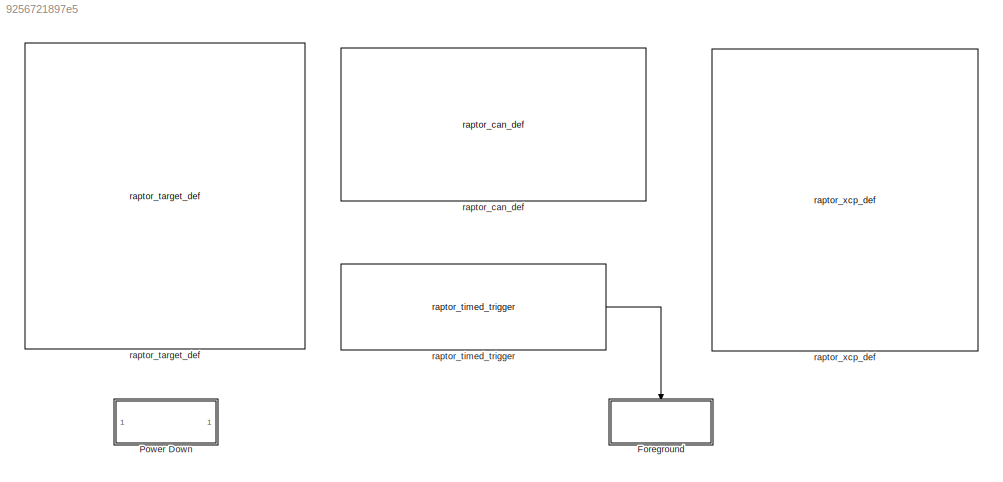
MODEL slx_9256721897e5
KIND model
CONFIG AbsTol = auto
CONFIG FixedStep = 0.005
CONFIG MaxStep = auto
CONFIG MinStep = auto
CONFIG PreLoadFcn = try, model_open; catch, disp('Error occurred while executing model pre-load callback: model_open.m'); disp('Please assure that the MATLAB working directory is set to the model directory before opening.'); end
CONFIG RelTol = 1e-3
CONFIG SampleTimeConstraint = Unconstrained
CONFIG Solver = FixedStepDiscrete
CONFIG SolverMode = Auto
CONFIG SolverName = FixedStepDiscrete
CONFIG StartTime = 0.0
CONFIG StopTime = 10.0
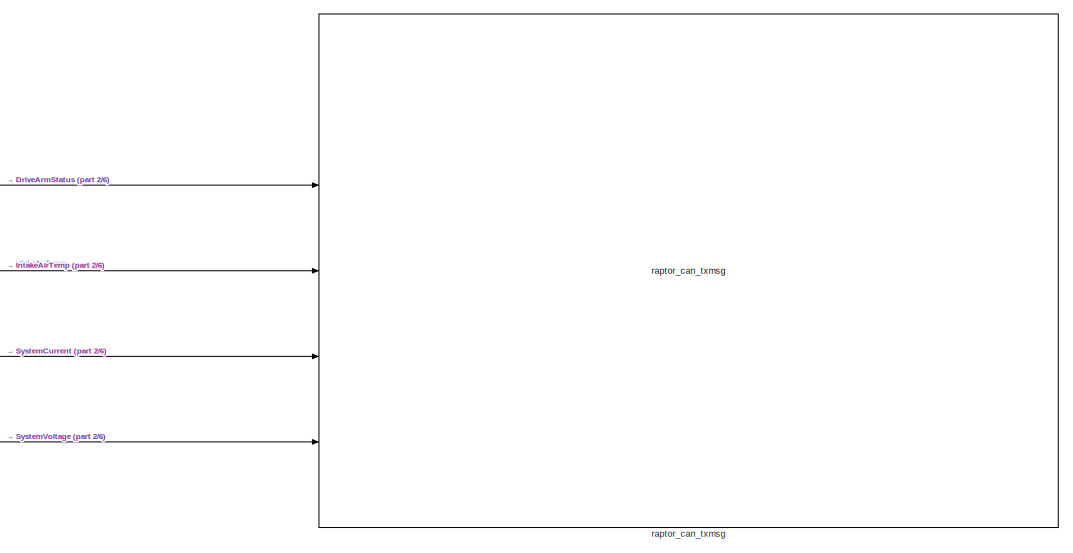
[diagram: Foreground - part 1/6, top right region]
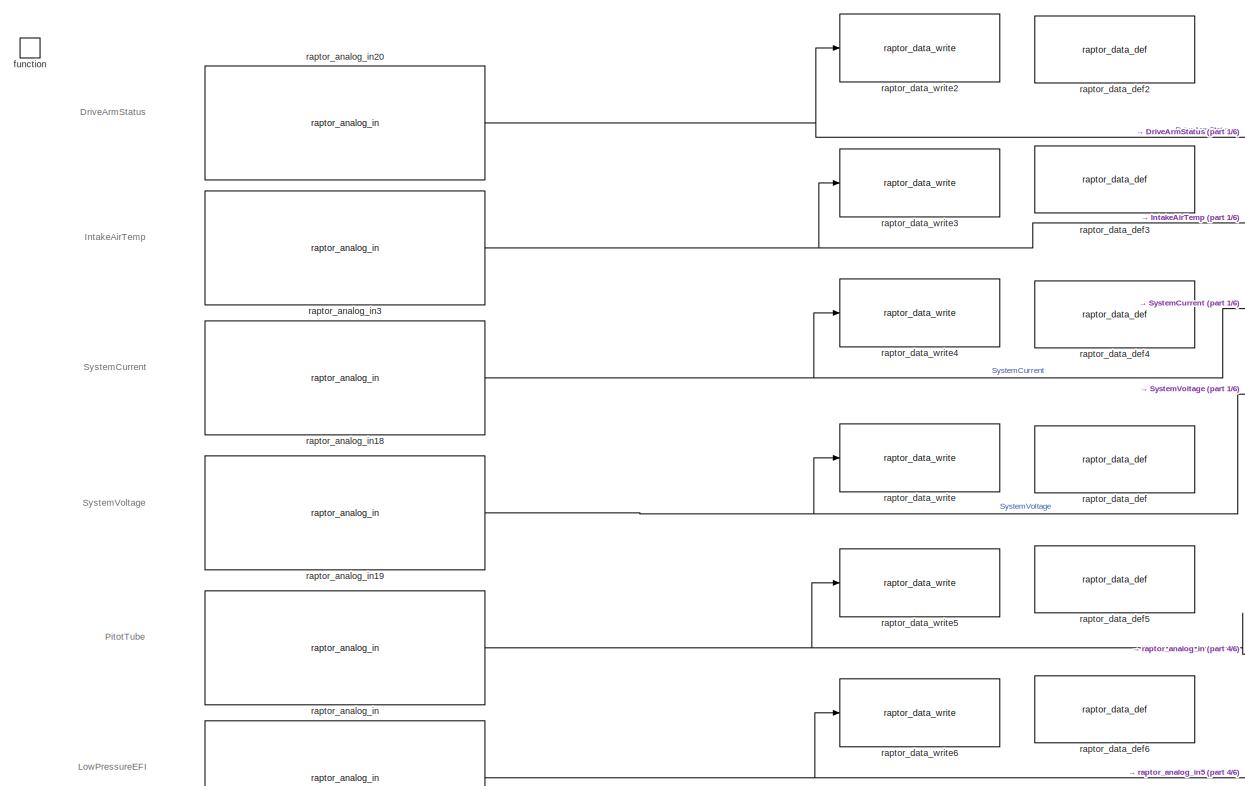
[diagram: Foreground - part 2/6, top left region]
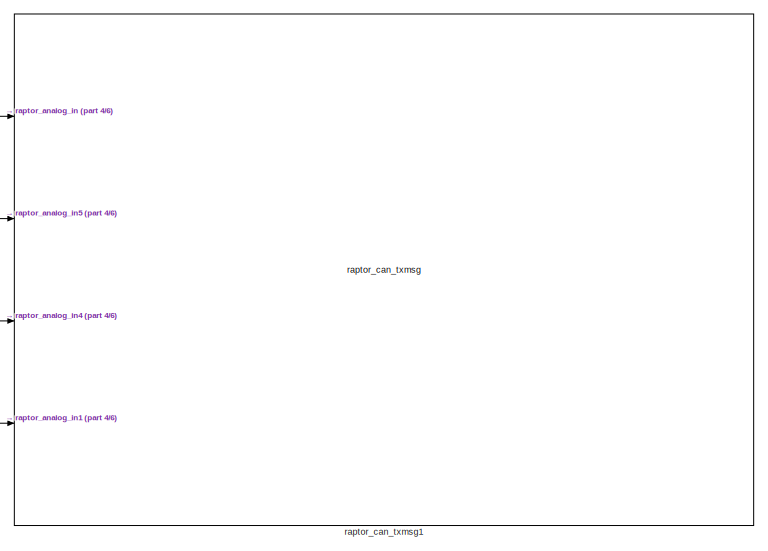
[diagram: Foreground - part 3/6, middle right region]
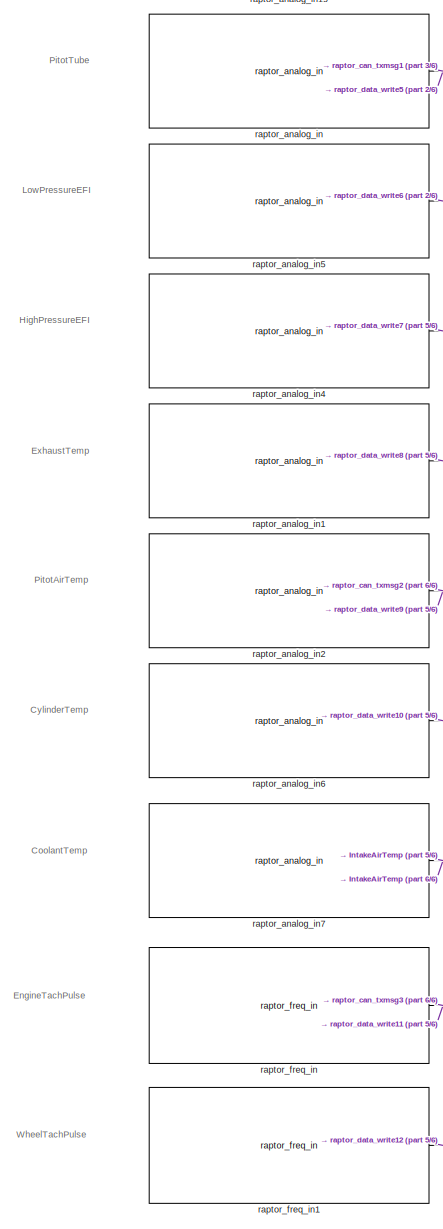
[diagram: Foreground - part 4/6, middle left region]
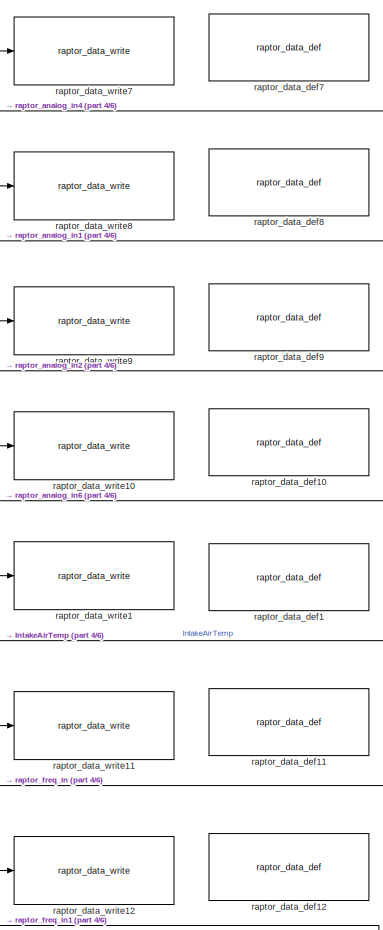
[diagram: Foreground - part 5/6, central region]
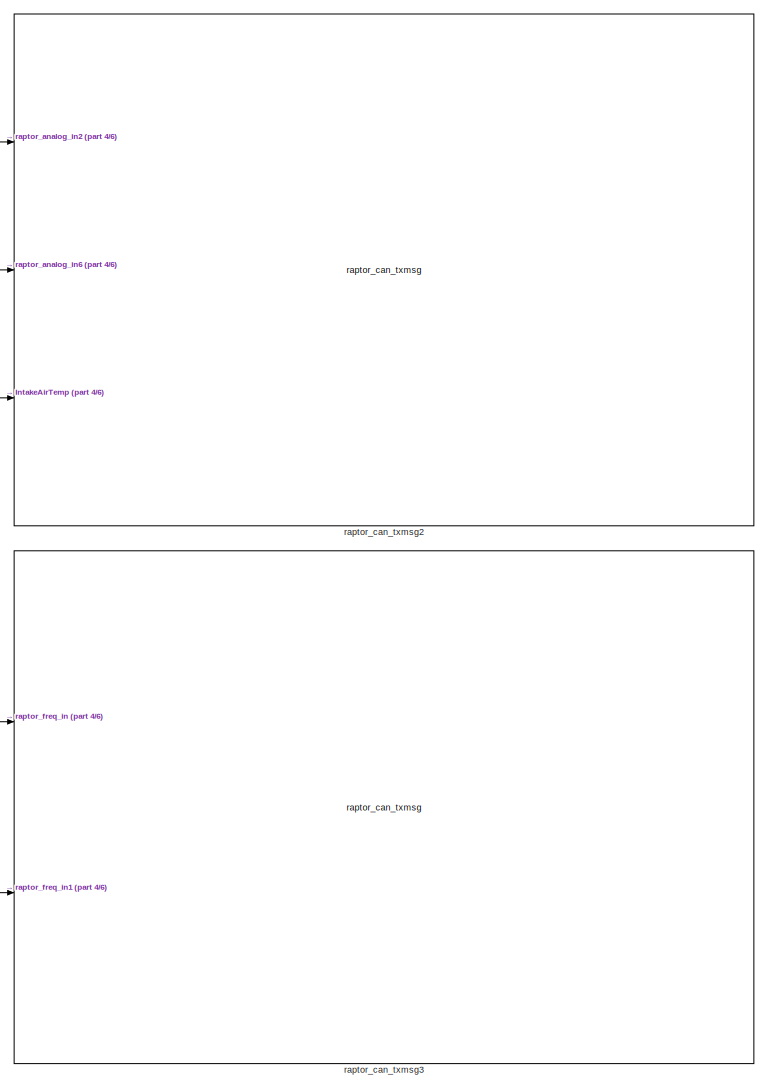
[diagram: Foreground - part 6/6, bottom right region]
BLOCK [SubSystem] Foreground
  Ports = [0, 0, 0, 1]
  RequestExecContextInheritance = off
  TreatAsAtomicUnit = on
BLOCK [TriggerPort] Foreground/function
  Ports = []
  StatesWhenEnabling = held
  TriggerType = function-call
BLOCK [Reference] Foreground/raptor_analog_in  REF=Raptor_lib/Input & Output/raptor_analog_in
  Ports = [0, 1]
  SourceBlock = Raptor_lib/Input & Output/raptor_analog_in
  SourceType = Analog Input Block
  filterrate = 'RAPTOR MASK DEFAULT'
  filterrateValues = []
  pullUD = None
  pullUDValues = None|650 PU|16.6k PU|50k PD|249 PD
  range = 0 - 6.49 V
  rangeValues = 0 - 4.40 V|0 - 6.49 V|0 - 10.69 V|0 - 12.78 V
  resource = INPUT10
  resourceValues = (None)|INPUT1|INPUT2|INPUT3|INPUT4|INPUT5|INPUT6|INPUT7|INPUT8|INPUT9|INPUT10|INPUT11|INPUT12|INPUT13|INPUT14|INPUT15|INPUT16|INPUT17|INPUT18|INPUT19|INPUT20|INPUT21|INPUT22|INPUT23|INPUT24|INPUT25|INPUT26|INPUT27|INPUT28|INPUT29|INPUT30|INPUT31|INPUT32|INPUT33|INPUT34|INPUT35|INPUT36  <repeated x11 — deduplicated; at blocks: raptor_analog_in, raptor_analog_in1, raptor_analog_in18, raptor_analog_in19, raptor_analog_in2, raptor_analog_in20, raptor_analog_in3, raptor_analog_in4, raptor_analog_in5, raptor_analog_in6, raptor_analog_in7>
BLOCK [Reference] Foreground/raptor_analog_in1  REF=Raptor_lib/Input & Output/raptor_analog_in
  Ports = [0, 1]
  SourceBlock = Raptor_lib/Input & Output/raptor_analog_in
  SourceType = Analog Input Block
  filterrate = 'RAPTOR MASK DEFAULT'
  filterrateValues = []
  pullUD = None
  pullUDValues = None|249 PD
  range = 0 - 22.90 V
  rangeValues = 0 - 22.90 V
  resource = INPUT15
BLOCK [Reference] Foreground/raptor_analog_in18  REF=Raptor_lib/Input & Output/raptor_analog_in
  Ports = [0, 1]
  SourceBlock = Raptor_lib/Input & Output/raptor_analog_in
  SourceType = Analog Input Block
  filterrate = 'RAPTOR MASK DEFAULT'
  filterrateValues = []
  pullUD = None
  pullUDValues = None|650 PU|16.6k PU|50k PD|249 PD
  range = 0 - 6.49 V
  rangeValues = 0 - 4.40 V|0 - 6.49 V|0 - 10.69 V|0 - 12.78 V
  resource = INPUT9
BLOCK [Reference] Foreground/raptor_analog_in19  REF=Raptor_lib/Input & Output/raptor_analog_in
  Ports = [0, 1]
  SourceBlock = Raptor_lib/Input & Output/raptor_analog_in
  SourceType = Analog Input Block
  filterrate = 'RAPTOR MASK DEFAULT'
  filterrateValues = []
  pullUD = None
  pullUDValues = None|3.33k PU|3.33k PD|3.33k PU, 3.33k PD
  range = 0 - 38.31 V
  rangeValues = 0 - 38.31 V
  resource = INPUT1
BLOCK [Reference] Foreground/raptor_analog_in2  REF=Raptor_lib/Input & Output/raptor_analog_in
  Ports = [0, 1]
  SourceBlock = Raptor_lib/Input & Output/raptor_analog_in
  SourceType = Analog Input Block
  filterrate = 'RAPTOR MASK DEFAULT'
  filterrateValues = []
  pullUD = None
  pullUDValues = None|249 PD
  range = 0 - 22.90 V
  rangeValues = 0 - 22.90 V
  resource = INPUT16
BLOCK [Reference] Foreground/raptor_analog_in20  REF=Raptor_lib/Input & Output/raptor_analog_in
  Ports = [0, 1]
  SourceBlock = Raptor_lib/Input & Output/raptor_analog_in
  SourceType = Analog Input Block
  filterrate = 'RAPTOR MASK DEFAULT'
  filterrateValues = []
  pullUD = None
  pullUDValues = None|3.33k PU|3.33k PD|3.33k PU, 3.33k PD
  range = 0 - 38.31 V
  rangeValues = 0 - 38.31 V
  resource = INPUT2
BLOCK [Reference] Foreground/raptor_analog_in3  REF=Raptor_lib/Input & Output/raptor_analog_in
  Ports = [0, 1]
  SourceBlock = Raptor_lib/Input & Output/raptor_analog_in
  SourceType = Analog Input Block
  filterrate = 'RAPTOR MASK DEFAULT'
  filterrateValues = []
  pullUD = None
  pullUDValues = None|3.33k PU|3.33k PD|3.33k PU, 3.33k PD
  range = 0 - 38.31 V
  rangeValues = 0 - 38.31 V
  resource = INPUT3
BLOCK [Reference] Foreground/raptor_analog_in4  REF=Raptor_lib/Input & Output/raptor_analog_in
  Ports = [0, 1]
  SourceBlock = Raptor_lib/Input & Output/raptor_analog_in
  SourceType = Analog Input Block
  filterrate = 'RAPTOR MASK DEFAULT'
  filterrateValues = []
  pullUD = None
  pullUDValues = None|249 PD
  range = 0 - 22.90 V
  rangeValues = 0 - 22.90 V
  resource = INPUT14
BLOCK [Reference] Foreground/raptor_analog_in5  REF=Raptor_lib/Input & Output/raptor_analog_in
  Ports = [0, 1]
  SourceBlock = Raptor_lib/Input & Output/raptor_analog_in
  SourceType = Analog Input Block
  filterrate = 'RAPTOR MASK DEFAULT'
  filterrateValues = []
  pullUD = None
  pullUDValues = None|249 PD
  range = 0 - 22.90 V
  rangeValues = 0 - 22.90 V
  resource = INPUT13
BLOCK [Reference] Foreground/raptor_analog_in6  REF=Raptor_lib/Input & Output/raptor_analog_in
  Ports = [0, 1]
  SourceBlock = Raptor_lib/Input & Output/raptor_analog_in
  SourceType = Analog Input Block
  filterrate = 'RAPTOR MASK DEFAULT'
  filterrateValues = []
  pullUD = None
  pullUDValues = None|249 PD
  range = 0 - 22.90 V
  rangeValues = 0 - 22.90 V
  resource = INPUT17
BLOCK [Reference] Foreground/raptor_analog_in7  REF=Raptor_lib/Input & Output/raptor_analog_in
  Ports = [0, 1]
  SourceBlock = Raptor_lib/Input & Output/raptor_analog_in
  SourceType = Analog Input Block
  filterrate = 'RAPTOR MASK DEFAULT'
  filterrateValues = []
  pullUD = None
  pullUDValues = None|249 PD
  range = 0 - 22.90 V
  rangeValues = 0 - 22.90 V
  resource = INPUT28
BLOCK [Reference] Foreground/raptor_can_txmsg  REF=Raptor_lib/CAN/raptor_can_txmsg
  Ports = [5]
  SourceBlock = Raptor_lib/CAN/raptor_can_txmsg
  SourceType = CAN Send Message
  canBus = 'CAN1'
  canDefinition = struct('dbcFile', '<path>','message', 'Message1','signals', {{'DriveArmStatus','IntakeAirTemp','SystemCurrent','SystemVoltage'}},'enabled', [ 1 1 1 1;],'canBus', '''CAN1''','idMask', [ 4080;],'payloadMask', [],'payloadValue', [],'period', [ 0;],'mailbox', '''''','queueSize', [ 1;],...<+58ch>
  fill = 0
  idMask = hex2dec('FF0')
  label = 1
  payloadMask = []
  payloadValue = []
  period = 0
  queueSize = 1
  showID = 1
BLOCK [Reference] Foreground/raptor_can_txmsg1  REF=Raptor_lib/CAN/raptor_can_txmsg
  Ports = [4]
  SourceBlock = Raptor_lib/CAN/raptor_can_txmsg
  SourceType = CAN Send Message
  canBus = 'CAN1'
  canDefinition = struct('dbcFile', '<path>','message', 'Message2','signals', {{'PitotTube','LowPressureEFI','HighPressureEFI','ExhuastTemp'}},'enabled', [ 1 1 1 1;],'canBus', '''CAN1''','idMask', [ 4080;],'payloadMask', [],'payloadValue', [],'period', [ 0;],'mailbox', '''''','queueSize', [ 1;],'lab...<+54ch>
  fill = 0
  idMask = hex2dec('FF0')
  label = 0
  payloadMask = []
  payloadValue = []
  period = 0
  queueSize = 1
  showID = 0
BLOCK [Reference] Foreground/raptor_can_txmsg2  REF=Raptor_lib/CAN/raptor_can_txmsg
  Ports = [3]
  SourceBlock = Raptor_lib/CAN/raptor_can_txmsg
  SourceType = CAN Send Message
  canBus = 'CAN1'
  canDefinition = struct('dbcFile', '<path>','message', 'Message3','signals', {{'PitotAirTemp','CylinderTemp','CoolantTemp'}},'enabled', [ 1 1 1;],'canBus', '''CAN1''','idMask', [ 4080;],'payloadMask', [],'payloadValue', [],'period', [ 0;],'mailbox', '''''','queueSize', [ 1;],'label', [ 0;],'ver', [...<+35ch>
  fill = 0
  idMask = hex2dec('FF0')
  label = 0
  payloadMask = []
  payloadValue = []
  period = 0
  queueSize = 1
  showID = 0
BLOCK [Reference] Foreground/raptor_can_txmsg3  REF=Raptor_lib/CAN/raptor_can_txmsg
  Ports = [2]
  SourceBlock = Raptor_lib/CAN/raptor_can_txmsg
  SourceType = CAN Send Message
  canBus = 'CAN1'
  canDefinition = struct('dbcFile', '<path>','message', 'Message4','signals', {{'EngineTachPulse','WheelTachPulse'}},'enabled', [ 1 1;],'canBus', '''CAN1''','idMask', [ 4080;],'payloadMask', [],'payloadValue', [],'period', [ 0;],'mailbox', '''''','queueSize', [ 1;],'label', [ 0;],'ver', [ 1;],'showI...<+24ch>
  fill = 0
  idMask = hex2dec('FF0')
  label = 0
  payloadMask = []
  payloadValue = []
  period = 0
  queueSize = 1
  showID = 0
BLOCK [Reference] Foreground/raptor_data_def  REF=Raptor_lib/Data Storage/raptor_data_def
  Ports = []
  SourceBlock = Raptor_lib/Data Storage/raptor_data_def
  SourceType = Data Store Definition Block
  calAccess = 4
  calColHeaders = {'Col1' 'Col2' 'Col3'}
  calDispHeaders = off
  calDispType = Number
  calEnum = {'False', 'True'}
  calFormat = '-1'
  calFunction = raptor_xcp_function(gcb)
  calGain = 1.0
  calHelp = ''
  calMax = Inf
  calMin = -Inf
  calOffset = 0
  calRowHeaders = {'Row1' 'Row2' 'Row3'}
  calType = Measurement
  calUnit = ''
  calVisible = on
  dataName = 'SystemVoltage'
  dataType = uint16
  initValue = 0
  storage = Volatile (RAM)
BLOCK [Reference] Foreground/raptor_data_def1  REF=Raptor_lib/Data Storage/raptor_data_def
  Ports = []
  SourceBlock = Raptor_lib/Data Storage/raptor_data_def
  SourceType = Data Store Definition Block
  calAccess = 4
  calColHeaders = {'Col1' 'Col2' 'Col3'}
  calDispHeaders = off
  calDispType = Number
  calEnum = {'False', 'True'}
  calFormat = '-1'
  calFunction = raptor_xcp_function(gcb)
  calGain = 1.0
  calHelp = ''
  calMax = Inf
  calMin = -Inf
  calOffset = 0
  calRowHeaders = {'Row1' 'Row2' 'Row3'}
  calType = Measurement
  calUnit = ''
  calVisible = on
  dataName = 'CoolantTemp'
  dataType = uint16
  initValue = 0
  storage = Volatile (RAM)
BLOCK [Reference] Foreground/raptor_data_def10  REF=Raptor_lib/Data Storage/raptor_data_def
  Ports = []
  SourceBlock = Raptor_lib/Data Storage/raptor_data_def
  SourceType = Data Store Definition Block
  calAccess = 4
  calColHeaders = {'Col1' 'Col2' 'Col3'}
  calDispHeaders = off
  calDispType = Number
  calEnum = {'False', 'True'}
  calFormat = '-1'
  calFunction = raptor_xcp_function(gcb)
  calGain = 1.0
  calHelp = ''
  calMax = Inf
  calMin = -Inf
  calOffset = 0
  calRowHeaders = {'Row1' 'Row2' 'Row3'}
  calType = Measurement
  calUnit = ''
  calVisible = on
  dataName = 'CylinderTemp'
  dataType = uint16
  initValue = 0
  storage = Volatile (RAM)
BLOCK [Reference] Foreground/raptor_data_def11  REF=Raptor_lib/Data Storage/raptor_data_def
  Ports = []
  SourceBlock = Raptor_lib/Data Storage/raptor_data_def
  SourceType = Data Store Definition Block
  calAccess = 4
  calColHeaders = {'Col1' 'Col2' 'Col3'}
  calDispHeaders = off
  calDispType = Number
  calEnum = {'False', 'True'}
  calFormat = '-1'
  calFunction = raptor_xcp_function(gcb)
  calGain = 1.0
  calHelp = ''
  calMax = Inf
  calMin = -Inf
  calOffset = 0
  calRowHeaders = {'Row1' 'Row2' 'Row3'}
  calType = Measurement
  calUnit = ''
  calVisible = on
  dataName = 'EngineTachPulse'
  dataType = uint32
  initValue = 0
  storage = Volatile (RAM)
BLOCK [Reference] Foreground/raptor_data_def12  REF=Raptor_lib/Data Storage/raptor_data_def
  Ports = []
  SourceBlock = Raptor_lib/Data Storage/raptor_data_def
  SourceType = Data Store Definition Block
  calAccess = 4
  calColHeaders = {'Col1' 'Col2' 'Col3'}
  calDispHeaders = off
  calDispType = Number
  calEnum = {'False', 'True'}
  calFormat = '-1'
  calFunction = raptor_xcp_function(gcb)
  calGain = 1.0
  calHelp = ''
  calMax = Inf
  calMin = -Inf
  calOffset = 0
  calRowHeaders = {'Row1' 'Row2' 'Row3'}
  calType = Measurement
  calUnit = ''
  calVisible = on
  dataName = 'WheelTachPulse'
  dataType = uint32
  initValue = 0
  storage = Volatile (RAM)
BLOCK [Reference] Foreground/raptor_data_def2  REF=Raptor_lib/Data Storage/raptor_data_def
  Ports = []
  SourceBlock = Raptor_lib/Data Storage/raptor_data_def
  SourceType = Data Store Definition Block
  calAccess = 4
  calColHeaders = {'Col1' 'Col2' 'Col3'}
  calDispHeaders = off
  calDispType = Number
  calEnum = {'False', 'True'}
  calFormat = '-1'
  calFunction = raptor_xcp_function(gcb)
  calGain = 1.0
  calHelp = ''
  calMax = Inf
  calMin = -Inf
  calOffset = 0
  calRowHeaders = {'Row1' 'Row2' 'Row3'}
  calType = Measurement
  calUnit = ''
  calVisible = on
  dataName = 'DriveArmStatus'
  dataType = uint16
  initValue = 0
  storage = Volatile (RAM)
BLOCK [Reference] Foreground/raptor_data_def3  REF=Raptor_lib/Data Storage/raptor_data_def
  Ports = []
  SourceBlock = Raptor_lib/Data Storage/raptor_data_def
  SourceType = Data Store Definition Block
  calAccess = 4
  calColHeaders = {'Col1' 'Col2' 'Col3'}
  calDispHeaders = off
  calDispType = Number
  calEnum = {'False', 'True'}
  calFormat = '-1'
  calFunction = raptor_xcp_function(gcb)
  calGain = 1.0
  calHelp = ''
  calMax = Inf
  calMin = -Inf
  calOffset = 0
  calRowHeaders = {'Row1' 'Row2' 'Row3'}
  calType = Measurement
  calUnit = ''
  calVisible = on
  dataName = 'IntakeAirTemp'
  dataType = uint16
  initValue = 0
  storage = Volatile (RAM)
BLOCK [Reference] Foreground/raptor_data_def4  REF=Raptor_lib/Data Storage/raptor_data_def
  Ports = []
  SourceBlock = Raptor_lib/Data Storage/raptor_data_def
  SourceType = Data Store Definition Block
  calAccess = 4
  calColHeaders = {'Col1' 'Col2' 'Col3'}
  calDispHeaders = off
  calDispType = Number
  calEnum = {'False', 'True'}
  calFormat = '-1'
  calFunction = raptor_xcp_function(gcb)
  calGain = 1.0
  calHelp = ''
  calMax = Inf
  calMin = -Inf
  calOffset = 0
  calRowHeaders = {'Row1' 'Row2' 'Row3'}
  calType = Measurement
  calUnit = ''
  calVisible = on
  dataName = 'SystemCurrent'
  dataType = uint16
  initValue = 0
  storage = Volatile (RAM)
BLOCK [Reference] Foreground/raptor_data_def5  REF=Raptor_lib/Data Storage/raptor_data_def
  Ports = []
  SourceBlock = Raptor_lib/Data Storage/raptor_data_def
  SourceType = Data Store Definition Block
  calAccess = 4
  calColHeaders = {'Col1' 'Col2' 'Col3'}
  calDispHeaders = off
  calDispType = Number
  calEnum = {'False', 'True'}
  calFormat = '-1'
  calFunction = raptor_xcp_function(gcb)
  calGain = 1.0
  calHelp = ''
  calMax = Inf
  calMin = -Inf
  calOffset = 0
  calRowHeaders = {'Row1' 'Row2' 'Row3'}
  calType = Measurement
  calUnit = ''
  calVisible = on
  dataName = 'PitotTube'
  dataType = uint16
  initValue = 0
  storage = Volatile (RAM)
BLOCK [Reference] Foreground/raptor_data_def6  REF=Raptor_lib/Data Storage/raptor_data_def
  Ports = []
  SourceBlock = Raptor_lib/Data Storage/raptor_data_def
  SourceType = Data Store Definition Block
  calAccess = 4
  calColHeaders = {'Col1' 'Col2' 'Col3'}
  calDispHeaders = off
  calDispType = Number
  calEnum = {'False', 'True'}
  calFormat = '-1'
  calFunction = raptor_xcp_function(gcb)
  calGain = 1.0
  calHelp = ''
  calMax = Inf
  calMin = -Inf
  calOffset = 0
  calRowHeaders = {'Row1' 'Row2' 'Row3'}
  calType = Measurement
  calUnit = ''
  calVisible = on
  dataName = 'LowPressureEFI'
  dataType = uint16
  initValue = 0
  storage = Volatile (RAM)
BLOCK [Reference] Foreground/raptor_data_def7  REF=Raptor_lib/Data Storage/raptor_data_def
  Ports = []
  SourceBlock = Raptor_lib/Data Storage/raptor_data_def
  SourceType = Data Store Definition Block
  calAccess = 4
  calColHeaders = {'Col1' 'Col2' 'Col3'}
  calDispHeaders = off
  calDispType = Number
  calEnum = {'False', 'True'}
  calFormat = '-1'
  calFunction = raptor_xcp_function(gcb)
  calGain = 1.0
  calHelp = ''
  calMax = Inf
  calMin = -Inf
  calOffset = 0
  calRowHeaders = {'Row1' 'Row2' 'Row3'}
  calType = Measurement
  calUnit = ''
  calVisible = on
  dataName = 'HighPressureEFI'
  dataType = uint16
  initValue = 0
  storage = Volatile (RAM)
BLOCK [Reference] Foreground/raptor_data_def8  REF=Raptor_lib/Data Storage/raptor_data_def
  Ports = []
  SourceBlock = Raptor_lib/Data Storage/raptor_data_def
  SourceType = Data Store Definition Block
  calAccess = 4
  calColHeaders = {'Col1' 'Col2' 'Col3'}
  calDispHeaders = off
  calDispType = Number
  calEnum = {'False', 'True'}
  calFormat = '-1'
  calFunction = raptor_xcp_function(gcb)
  calGain = 1.0
  calHelp = ''
  calMax = Inf
  calMin = -Inf
  calOffset = 0
  calRowHeaders = {'Row1' 'Row2' 'Row3'}
  calType = Measurement
  calUnit = ''
  calVisible = on
  dataName = 'ExhaustTemp'
  dataType = uint16
  initValue = 0
  storage = Volatile (RAM)
BLOCK [Reference] Foreground/raptor_data_def9  REF=Raptor_lib/Data Storage/raptor_data_def
  Ports = []
  SourceBlock = Raptor_lib/Data Storage/raptor_data_def
  SourceType = Data Store Definition Block
  calAccess = 4
  calColHeaders = {'Col1' 'Col2' 'Col3'}
  calDispHeaders = off
  calDispType = Number
  calEnum = {'False', 'True'}
  calFormat = '-1'
  calFunction = raptor_xcp_function(gcb)
  calGain = 1.0
  calHelp = ''
  calMax = Inf
  calMin = -Inf
  calOffset = 0
  calRowHeaders = {'Row1' 'Row2' 'Row3'}
  calType = Measurement
  calUnit = ''
  calVisible = on
  dataName = 'PitotAirTemp'
  dataType = uint16
  initValue = 0
  storage = Volatile (RAM)
BLOCK [Reference] Foreground/raptor_data_write  REF=Raptor_lib/Data Storage/raptor_data_write
  Ports = [1]
  SourceBlock = Raptor_lib/Data Storage/raptor_data_write
  SourceType = Data Write Block
  dataName = 'SystemVoltage'
  dataShape = Scalar
  idxCol = 1
  idxRow = 1
  idxSource = Input Port
BLOCK [Reference] Foreground/raptor_data_write1  REF=Raptor_lib/Data Storage/raptor_data_write
  Ports = [1]
  SourceBlock = Raptor_lib/Data Storage/raptor_data_write
  SourceType = Data Write Block
  dataName = 'CoolantTemp'
  dataShape = Scalar
  idxCol = 1
  idxRow = 1
  idxSource = Input Port
BLOCK [Reference] Foreground/raptor_data_write10  REF=Raptor_lib/Data Storage/raptor_data_write
  Ports = [1]
  SourceBlock = Raptor_lib/Data Storage/raptor_data_write
  SourceType = Data Write Block
  dataName = 'CylinderTemp'
  dataShape = Scalar
  idxCol = 1
  idxRow = 1
  idxSource = Input Port
BLOCK [Reference] Foreground/raptor_data_write11  REF=Raptor_lib/Data Storage/raptor_data_write
  Ports = [1]
  SourceBlock = Raptor_lib/Data Storage/raptor_data_write
  SourceType = Data Write Block
  dataName = 'EngineTachPulse'
  dataShape = Scalar
  idxCol = 1
  idxRow = 1
  idxSource = Input Port
BLOCK [Reference] Foreground/raptor_data_write12  REF=Raptor_lib/Data Storage/raptor_data_write
  Ports = [1]
  SourceBlock = Raptor_lib/Data Storage/raptor_data_write
  SourceType = Data Write Block
  dataName = 'WheelTachPulse'
  dataShape = Scalar
  idxCol = 1
  idxRow = 1
  idxSource = Input Port
BLOCK [Reference] Foreground/raptor_data_write2  REF=Raptor_lib/Data Storage/raptor_data_write
  Ports = [1]
  SourceBlock = Raptor_lib/Data Storage/raptor_data_write
  SourceType = Data Write Block
  dataName = 'DriveArmStatus'
  dataShape = Scalar
  idxCol = 1
  idxRow = 1
  idxSource = Input Port
BLOCK [Reference] Foreground/raptor_data_write3  REF=Raptor_lib/Data Storage/raptor_data_write
  Ports = [1]
  SourceBlock = Raptor_lib/Data Storage/raptor_data_write
  SourceType = Data Write Block
  dataName = 'IntakeAirTemp'
  dataShape = Scalar
  idxCol = 1
  idxRow = 1
  idxSource = Input Port
BLOCK [Reference] Foreground/raptor_data_write4  REF=Raptor_lib/Data Storage/raptor_data_write
  Ports = [1]
  SourceBlock = Raptor_lib/Data Storage/raptor_data_write
  SourceType = Data Write Block
  dataName = 'SystemCurrent'
  dataShape = Scalar
  idxCol = 1
  idxRow = 1
  idxSource = Input Port
BLOCK [Reference] Foreground/raptor_data_write5  REF=Raptor_lib/Data Storage/raptor_data_write
  Ports = [1]
  SourceBlock = Raptor_lib/Data Storage/raptor_data_write
  SourceType = Data Write Block
  dataName = 'PitotTube'
  dataShape = Scalar
  idxCol = 1
  idxRow = 1
  idxSource = Input Port
BLOCK [Reference] Foreground/raptor_data_write6  REF=Raptor_lib/Data Storage/raptor_data_write
  Ports = [1]
  SourceBlock = Raptor_lib/Data Storage/raptor_data_write
  SourceType = Data Write Block
  dataName = 'LowPressureEFI'
  dataShape = Scalar
  idxCol = 1
  idxRow = 1
  idxSource = Input Port
BLOCK [Reference] Foreground/raptor_data_write7  REF=Raptor_lib/Data Storage/raptor_data_write
  Ports = [1]
  SourceBlock = Raptor_lib/Data Storage/raptor_data_write
  SourceType = Data Write Block
  dataName = 'HighPressureEFI'
  dataShape = Scalar
  idxCol = 1
  idxRow = 1
  idxSource = Input Port
BLOCK [Reference] Foreground/raptor_data_write8  REF=Raptor_lib/Data Storage/raptor_data_write
  Ports = [1]
  SourceBlock = Raptor_lib/Data Storage/raptor_data_write
  SourceType = Data Write Block
  dataName = 'ExhaustTemp'
  dataShape = Scalar
  idxCol = 1
  idxRow = 1
  idxSource = Input Port
BLOCK [Reference] Foreground/raptor_data_write9  REF=Raptor_lib/Data Storage/raptor_data_write
  Ports = [1]
  SourceBlock = Raptor_lib/Data Storage/raptor_data_write
  SourceType = Data Write Block
  dataName = 'PitotAirTemp'
  dataShape = Scalar
  idxCol = 1
  idxRow = 1
  idxSource = Input Port
BLOCK [Reference] Foreground/raptor_freq_in  REF=Raptor_lib/Input & Output/raptor_freq_in
  Ports = [0, 1]
  SourceBlock = Raptor_lib/Input & Output/raptor_freq_in
  SourceType = Frequency Input Block
  filter = 1kHz
  filterValues = 1kHz|3kHz|10kHz
  hasDuty = off
  hasEdgeCount = off
  pullUD = 4.75k PU, 5.46k PD
  pullUDValues = 4.75k PU, 5.46k PD|5.46k PD
  resource = INPUT33
  resourceValues = (None)|INPUT33|INPUT34|INPUT35|INPUT36
BLOCK [Reference] Foreground/raptor_freq_in1  REF=Raptor_lib/Input & Output/raptor_freq_in
  Ports = [0, 1]
  SourceBlock = Raptor_lib/Input & Output/raptor_freq_in
  SourceType = Frequency Input Block
  filter = 1kHz
  filterValues = 1kHz|3kHz|10kHz
  hasDuty = off
  hasEdgeCount = off
  pullUD = 4.75k PU, 5.46k PD
  pullUDValues = 4.75k PU, 5.46k PD|5.46k PD
  resource = INPUT35
  resourceValues = (None)|INPUT33|INPUT34|INPUT35|INPUT36
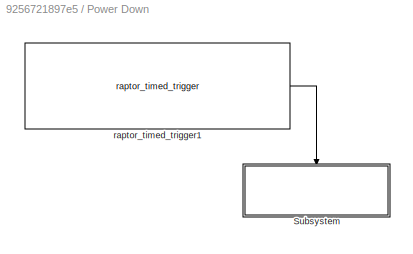
BLOCK [SubSystem] Power Down
  Ports = []
  RequestExecContextInheritance = off
  TreatAsAtomicUnit = on
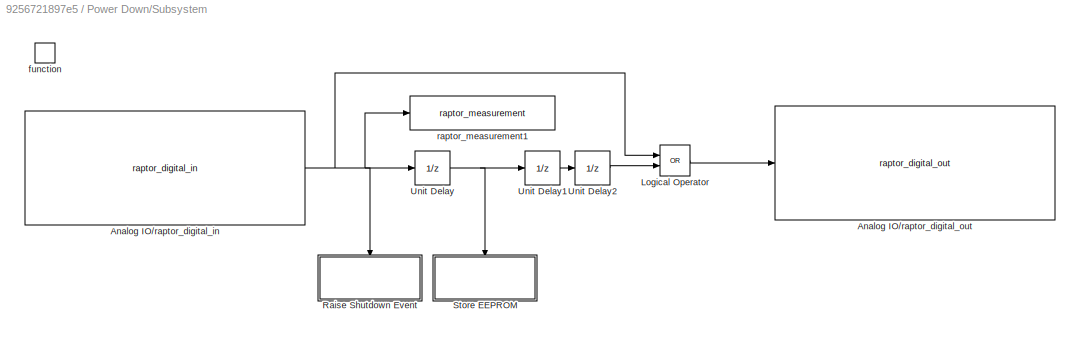
BLOCK [SubSystem] Power Down/Subsystem
  Ports = [0, 0, 0, 1]
  RequestExecContextInheritance = off
BLOCK [Reference] Power Down/Subsystem/Analog IO//raptor_digital_in  REF=Raptor_lib/Input & Output/raptor_digital_in
  Ports = [0, 1]
  SourceBlock = Raptor_lib/Input & Output/raptor_digital_in
  SourceType = Digital Input Block
  lowerThres = 1.320
  pullUD = 220k PD
  pullUDValues = 2k PD
  resource = WAKE_INPUT1
  resourceValues = (None)|WAKE_INPUT1|INPUT2|INPUT3|INPUT4|INPUT5|INPUT6|INPUT8|INPUT9|INPUT10|INPUT11|INPUT12|INPUT13|INPUT14|INPUT15|INPUT16|INPUT17|INPUT18|INPUT19|INPUT20|INPUT21
  upperThres = 1.980
BLOCK [Reference] Power Down/Subsystem/Analog IO//raptor_digital_out  REF=Raptor_lib/Input & Output/raptor_digital_out
  Ports = [1]
  SourceBlock = Raptor_lib/Input & Output/raptor_digital_out
  SourceType = Digital Output
  driverType = (None)
  driverTypeValues = (None)
  resource = POWER_HOLD
  resourceValues = (None)|OUTPUT1|OUTPUT2|OUTPUT3|OUTPUT4|OUTPUT5|OUTPUT6|OUTPUT7|OUTPUT8|OUTPUT9|OUTPUT10|OUTPUT11|OUTPUT12|OUTPUT13|OUTPUT14|OUTPUT15|LED_1|LED_2|LED_3|LED_4|LED_5|LED_6|LED_7|LED_8|LED_9|LED_10|LED_11|LED_12|LED_13|LED_14|LED_15|LED_16|LED_17|LED_18|LED_19|LED_20|LED_21|LED_22|LED_23|LED_24|LED_25|LED_26|LED_27|LED_28|LED_29|LED_30|LED_31|LED_32|LED_33|LED_34|LED_35|LED_36|LED_37|LED_38|LED_39|LED...<+39ch>
BLOCK [Logic] Power Down/Subsystem/Logical Operator
  AllPortsSameDT = off
  Operator = OR
  OutDataTypeStr = boolean
  Ports = [2, 1]
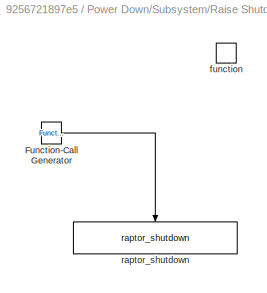
BLOCK [SubSystem] Power Down/Subsystem/Raise Shutdown Event
  Ports = [0, 0, 0, 1]
  RequestExecContextInheritance = off
  TreatAsAtomicUnit = on
BLOCK [Reference] Power Down/Subsystem/Raise Shutdown Event/Function-Call Generator  REF=simulink/Ports &
Subsystems/Function-Call
Generator
  Ports = [0, 1]
  SourceBlock = simulink/Ports &\nSubsystems/Function-Call\nGenerator
  SourceType = Function-Call Generator
  numberOfIterations = 1
  sample_time = -1
BLOCK [TriggerPort] Power Down/Subsystem/Raise Shutdown Event/function
  Ports = []
  StatesWhenEnabling = held
  TriggerType = falling
BLOCK [Reference] Power Down/Subsystem/Raise Shutdown Event/raptor_shutdown  REF=Raptor_lib/Triggers/raptor_shutdown
  Ports = [0, 0, 0, 1]
  SourceBlock = Raptor_lib/Triggers/raptor_shutdown
  SourceType = Shutdown
  null = 0
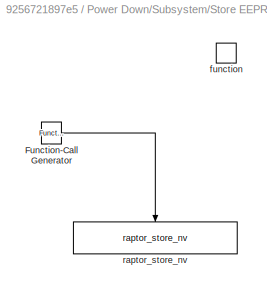
BLOCK [SubSystem] Power Down/Subsystem/Store EEPROM
  Ports = [0, 0, 0, 1]
  RequestExecContextInheritance = off
  TreatAsAtomicUnit = on
BLOCK [Reference] Power Down/Subsystem/Store EEPROM/Function-Call Generator  REF=simulink/Ports &
Subsystems/Function-Call
Generator
  Ports = [0, 1]
  SourceBlock = simulink/Ports &\nSubsystems/Function-Call\nGenerator
  SourceType = Function-Call Generator
  numberOfIterations = 1
  sample_time = -1
BLOCK [TriggerPort] Power Down/Subsystem/Store EEPROM/function
  Ports = []
  StatesWhenEnabling = held
  TriggerType = falling
BLOCK [Reference] Power Down/Subsystem/Store EEPROM/raptor_store_nv  REF=Raptor_lib/Data Storage/raptor_store_nv
  Ports = [0, 0, 0, 1]
  SourceBlock = Raptor_lib/Data Storage/raptor_store_nv
  SourceType = Store NonVolatile
  null = 0
BLOCK [UnitDelay] Power Down/Subsystem/Unit Delay
  InputProcessing = Elements as channels (sample based)
  SampleTime = -1
BLOCK [UnitDelay] Power Down/Subsystem/Unit Delay1
  InputProcessing = Elements as channels (sample based)
  SampleTime = -1
BLOCK [UnitDelay] Power Down/Subsystem/Unit Delay2
  InputProcessing = Elements as channels (sample based)
  SampleTime = -1
BLOCK [TriggerPort] Power Down/Subsystem/function
  Ports = []
  StatesWhenEnabling = held
  TriggerType = function-call
BLOCK [Reference] Power Down/Subsystem/raptor_measurement1  REF=Raptor_lib/Data Storage/raptor_measurement
  Ports = [1]
  SourceBlock = Raptor_lib/Data Storage/raptor_measurement
  SourceType = Measurement
  calAccess = 4
  calDispType = Number
  calEnum = {'False', 'True'}
  calFormat = '-1'
  calFunction = raptor_xcp_function(gcb)
  calGain = 1.0
  calHelp = ''
  calMax = inf
  calMin = -inf
  calOffset = 0.0
  calUnit = ''
  calVisible = on
  nameSource = Parameter
  paramName = 'WakeInput'
BLOCK [Reference] Power Down/raptor_timed_trigger1  REF=Raptor_lib/Triggers/raptor_timed_trigger
  Ports = [0, 1]
  SourceBlock = Raptor_lib/Triggers/raptor_timed_trigger
  SourceType = Timed Trigger Block
  alwaysEnabled = 1
  trigger = Background
  triggerName = PowerDown
  triggerPriority = 0
  triggerValues = Foreground|Foregroundx2|Foregroundx5|Foregroundx10|Foregroundx20|Background|Backgroundx2|Backgroundx5|Backgroundx10|Backgroundx20|Second|Minute
BLOCK [Reference] raptor_can_def  REF=Raptor_lib/CAN/raptor_can_def
  Ports = []
  SourceBlock = Raptor_lib/CAN/raptor_can_def
  SourceType = CAN Definition
  baudRate = 250k
  baudRateValues = 250k
  canBus = 'CAN1'
  resource = CAN1
  resourceValues = (None)|CAN1|CAN2
BLOCK [Reference] raptor_target_def  REF=Raptor_lib/Configuration/raptor_target_def
  Ports = []
  SourceBlock = Raptor_lib/Configuration/raptor_target_def
  SourceType = Target Definition Block
  a2lLocation = ''
  addBuildNum = 1
  buildLocation = Model Directory
  buildLocationValues = Raptor Default|Model Directory|User Defined
  calloc = NonVolatile (EEPROM)
  callocValues = Constant (FLASH)|NonVolatile (EEPROM)
  compiler = CodeWarrior for MPC55xx/MPC56xx Microcontrollers V2.10
  compilerValues = CodeWarrior for MPC55xx/MPC56xx Microcontrollers V2.10
  ecuaddr = 253
  exeLocation = ''
  exeName = [raptor_get_safe_string(bdroot) '_']
  heap = 2*1024
  minVerChars = 3
  rpgLocation = ''
  setFileName = 0
  simpack = 0
  simulator = 0
  stack = 2*1024
  target = HCM-5534-90-1302
  targetValues = BCM-5646-48-1404|DISP-IMX286-012-1402|DISP-IMX286-024-1204|DISP-IMX286-036-1402|HCM-5534-50-1203|HCM-5534-90-1201|HCM-5534-90-1302|HCM-5604-36-1303|HCM-ARM4-070-1401
BLOCK [Reference] raptor_timed_trigger  REF=Raptor_lib/Triggers/raptor_timed_trigger
  Ports = [0, 1]
  SourceBlock = Raptor_lib/Triggers/raptor_timed_trigger
  SourceType = Timed Trigger Block
  alwaysEnabled = 1
  trigger = Foreground
  triggerName = ooqlV
  triggerPriority = 0
  triggerValues = []
BLOCK [Reference] raptor_xcp_def  REF=Raptor_lib/Configuration/raptor_xcp_def
  Ports = []
  SourceBlock = Raptor_lib/Configuration/raptor_xcp_def
  SourceType = XCP Definition Block
  bcID = hex2dec('100')
  bcID_Type = Standard
  bcID_TypeValues = Standard|Extended
  canBus = 'CAN1'
  daqRates = [5 10 100]
  dllName = raptor_XCPSecurity.dll
  genCANAPE = 0
  numODTs = 8
  rxID = hex2dec('200')
  rxID_Type = Standard
  rxID_TypeValues = Standard|Extended
  security = Standard
  securityValues = Standard|None|Custom User Defined|Default
  txID = hex2dec('300')
  txID_Type = Standard
  txID_TypeValues = Standard|Extended
ANNOTATION Foreground: CoolantTemp
ANNOTATION Foreground: CylinderTemp
ANNOTATION Foreground: DriveArmStatus
ANNOTATION Foreground: EngineTachPulse
ANNOTATION Foreground: ExhaustTemp
ANNOTATION Foreground: HighPressureEFI
ANNOTATION Foreground: IntakeAirTemp
ANNOTATION Foreground: LowPressureEFI
ANNOTATION Foreground: PitotAirTemp
ANNOTATION Foreground: PitotTube
ANNOTATION Foreground: SystemCurrent
ANNOTATION Foreground: SystemVoltage
ANNOTATION Foreground: WheelTachPulse
NET Foreground/raptor_analog_in18:1 -> Foreground/raptor_can_txmsg:4, Foreground/raptor_data_write4:1
NET Foreground/raptor_analog_in19:1 -> Foreground/raptor_can_txmsg:5, Foreground/raptor_data_write:1
NET Foreground/raptor_analog_in1:1 -> Foreground/raptor_can_txmsg1:4, Foreground/raptor_data_write8:1
NET Foreground/raptor_analog_in20:1 -> Foreground/raptor_can_txmsg:2, Foreground/raptor_data_write2:1
NET Foreground/raptor_analog_in2:1 -> Foreground/raptor_can_txmsg2:1, Foreground/raptor_data_write9:1
NET Foreground/raptor_analog_in3:1 -> Foreground/raptor_can_txmsg:3, Foreground/raptor_data_write3:1
NET Foreground/raptor_analog_in4:1 -> Foreground/raptor_can_txmsg1:3, Foreground/raptor_data_write7:1
NET Foreground/raptor_analog_in5:1 -> Foreground/raptor_can_txmsg1:2, Foreground/raptor_data_write6:1
NET Foreground/raptor_analog_in6:1 -> Foreground/raptor_can_txmsg2:2, Foreground/raptor_data_write10:1
NET Foreground/raptor_analog_in7:1 -> Foreground/raptor_can_txmsg2:3, Foreground/raptor_data_write1:1
NET Foreground/raptor_analog_in:1 -> Foreground/raptor_can_txmsg1:1, Foreground/raptor_data_write5:1
NET Foreground/raptor_freq_in1:1 -> Foreground/raptor_can_txmsg3:2, Foreground/raptor_data_write12:1
NET Foreground/raptor_freq_in:1 -> Foreground/raptor_can_txmsg3:1, Foreground/raptor_data_write11:1
NET Power Down/Subsystem/Analog IO//raptor_digital_in:1 -> Power Down/Subsystem/Logical Operator:1, Power Down/Subsystem/Raise Shutdown Event:trigger, Power Down/Subsystem/Unit Delay:1, Power Down/Subsystem/raptor_measurement1:1
LINE Power Down/Subsystem/Logical Operator:1 -> Power Down/Subsystem/Analog IO//raptor_digital_out:1
LINE Power Down/Subsystem/Raise Shutdown Event/Function-Call Generator:1 -> Power Down/Subsystem/Raise Shutdown Event/raptor_shutdown:trigger
LINE Power Down/Subsystem/Store EEPROM/Function-Call Generator:1 -> Power Down/Subsystem/Store EEPROM/raptor_store_nv:trigger
LINE Power Down/Subsystem/Unit Delay1:1 -> Power Down/Subsystem/Unit Delay2:1
LINE Power Down/Subsystem/Unit Delay2:1 -> Power Down/Subsystem/Logical Operator:2
NET Power Down/Subsystem/Unit Delay:1 -> Power Down/Subsystem/Store EEPROM:trigger, Power Down/Subsystem/Unit Delay1:1
LINE Power Down/raptor_timed_trigger1:1 -> Power Down/Subsystem:trigger
LINE raptor_timed_trigger:1 -> Foreground:trigger
note: NET lines group one-source signal fan-out (src -> all destinations, sorted); 1:1 wires keep LINE
note: 4 file-system paths scrubbed to <path> (not preserved elsewhere — flat text is the only slx artifact)
